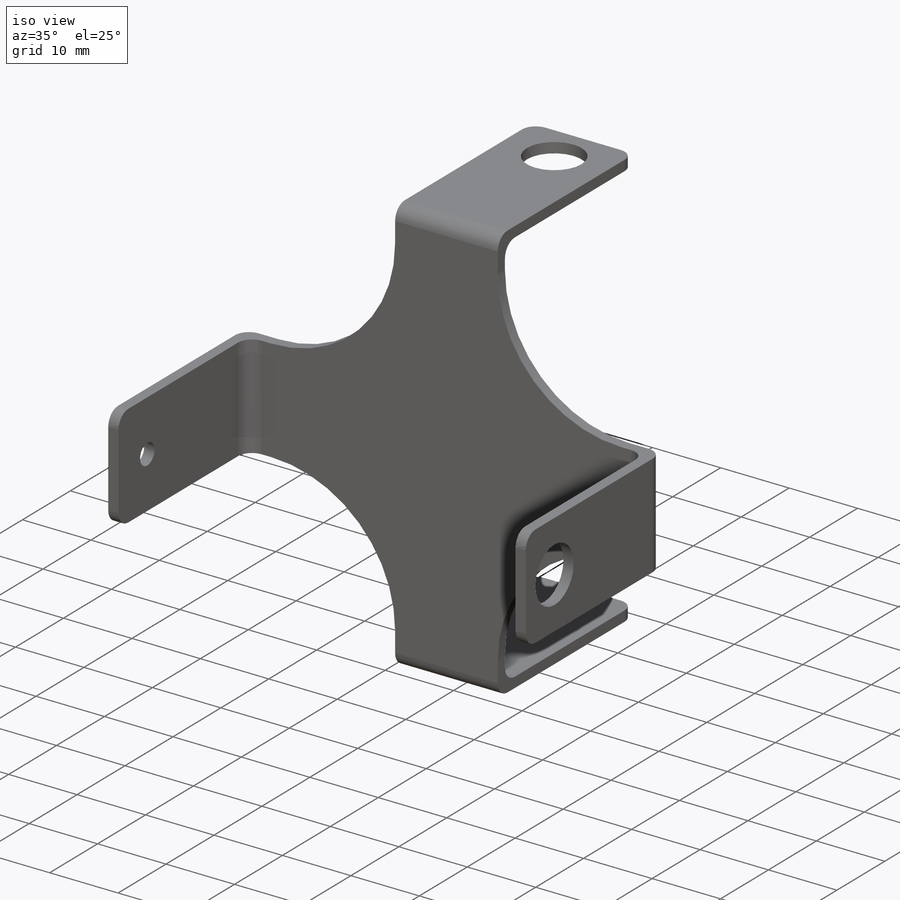
[diagram: iso view]
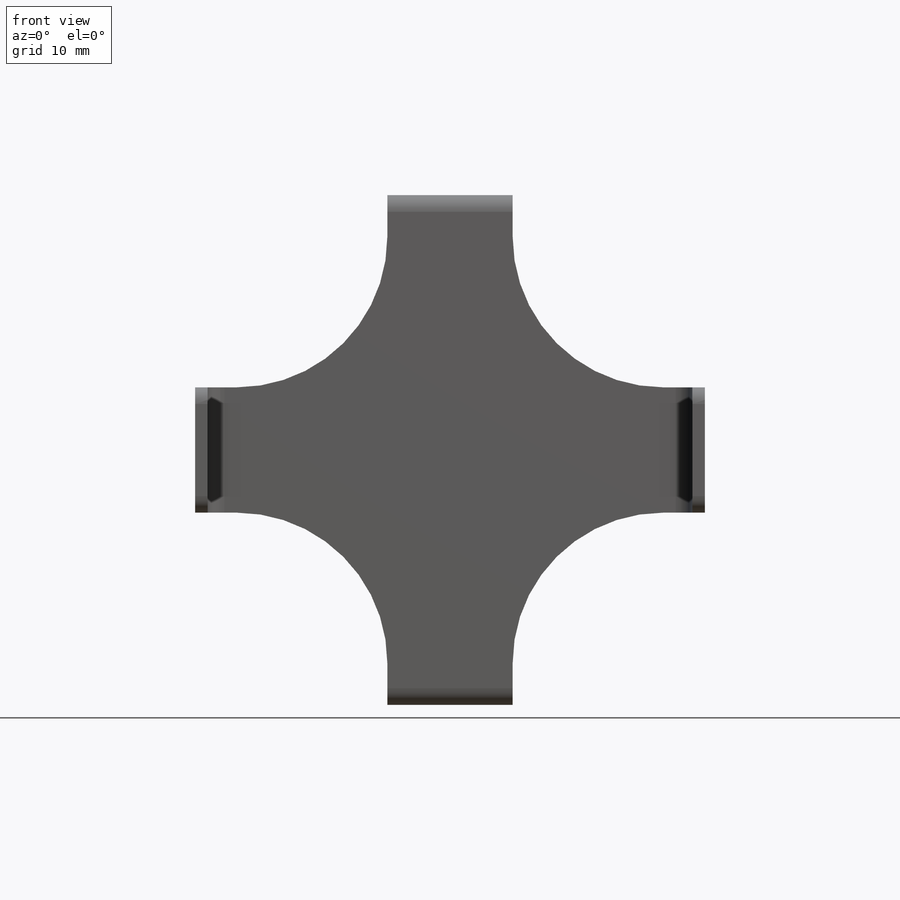
[diagram: front view]
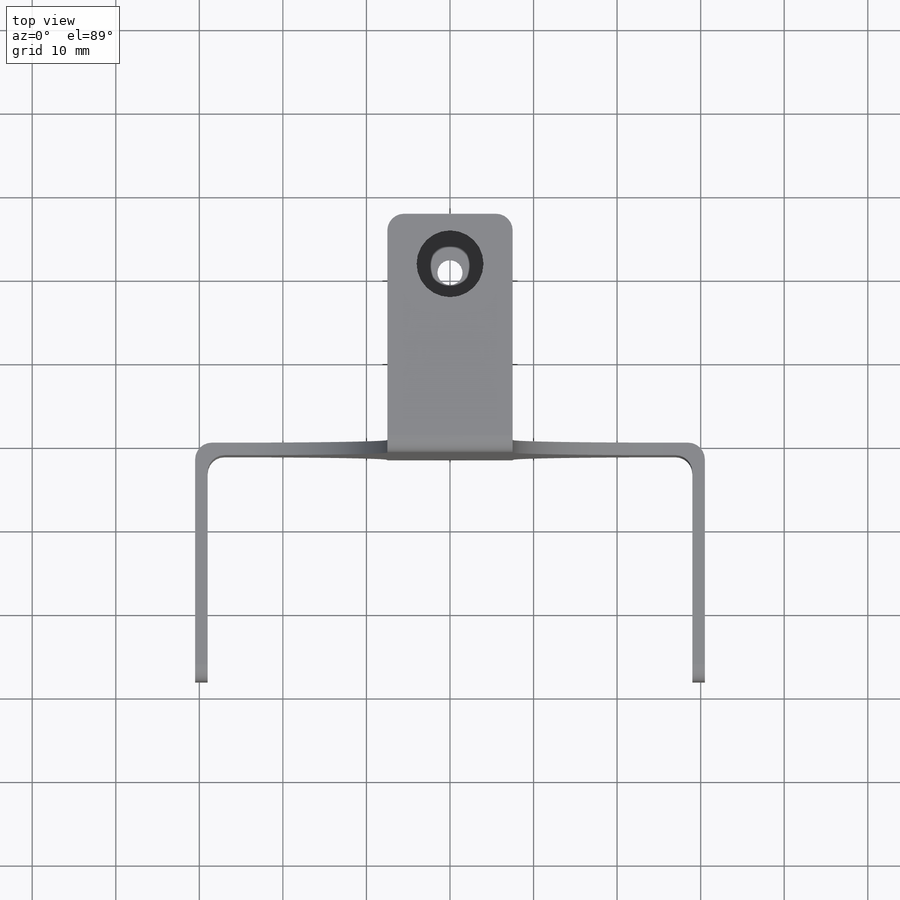
[diagram: top view]
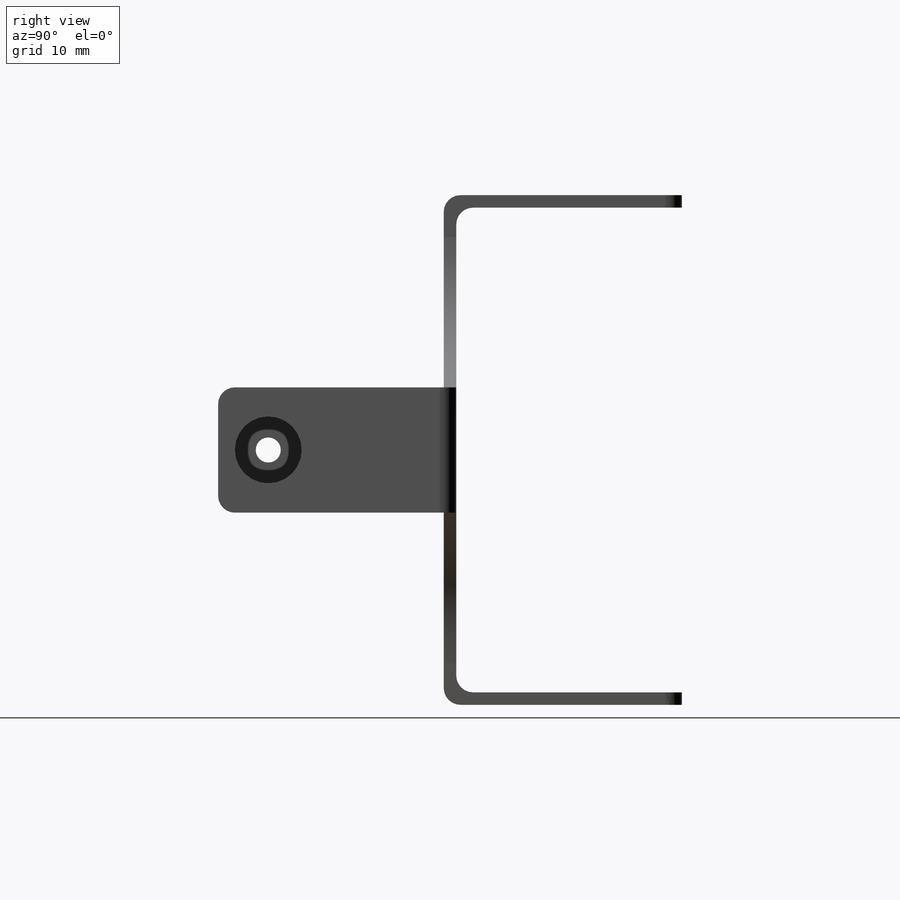
[diagram: right view]
SOLIDWORKS PART (.sldprt)
format: sldprt  version: not decoded by parser v0  size: 339,968 bytes
history: native  units: mm
features: sketch x7, cut_extrude x4, extrude x3, fillet x3, material x1 (+13 scaffold rows collapsed)
feature tree (31):
  scaffold x13  (default folders/planes/origin — collapsed)
  material  "Material <not specified>"
  sketch  "Sketch1"  dims[c1.D3=8.0mm c1.D4=8.0mm c1.D6=3.0mm c1.D8=8.0mm c1.D9=8.0mm c1.D10=3.0mm c1.D1=~17.813813mm c1.D2=~114.958471mm c2.D1=15.0mm c2.D2=58.0mm c2.D3=~3.123764mm c2.D4=21.0mm c2.D5=6.0mm c2.D7=21.0mm c2.D8=~66.936457mm c2.D9=~17.658534mm c3.D8=~26.078676mm c3.D9=21.0mm c3.D10=6.0mm c3.D11=21.0mm]
  extrude  "Boss-Extrude1"  Depth=1.5mm
  sketch  "Sketch2"  dims[D1=1.5mm D2=1.5mm]
  extrude  "Boss-Extrude2"  Depth=28.5mm
  sketch  "Sketch3"  dims[D1=1.5mm D2=1.5mm]
  extrude  "Boss-Extrude3"  Depth=28.5mm
  sketch  "Sketch4"  dims[D1=3.0mm D2=6.0mm]
  cut_extrude  "Cut-Extrude1"  [1 undecoded]
  sketch  "Sketch5"  dims[D1=3.0mm D2=6.0mm]
  cut_extrude  "Cut-Extrude2"  [1 undecoded]
  fillet  "Fillet1"  Radius=2mm
  fillet  "Fillet2"  Radius=2mm
  fillet  "Fillet3"  Radius=18mm
  sketch  "Sketch6"  dims[D1=8.0mm]
  cut_extrude  "Cut-Extrude3"  [1 undecoded]
  sketch  "Sketch7"  dims[D1=8.0mm]
  cut_extrude  "Cut-Extrude4"  [1 undecoded]
decode coverage: 13 of 17 modeling features carry decoded parameters
note: ~ marks probable driven/reference dimensions
note: 4 parameter values undecoded
summary: no parameter record found for 4 features
note: suppression state not decoded; provenance and decode notes live in map.json
